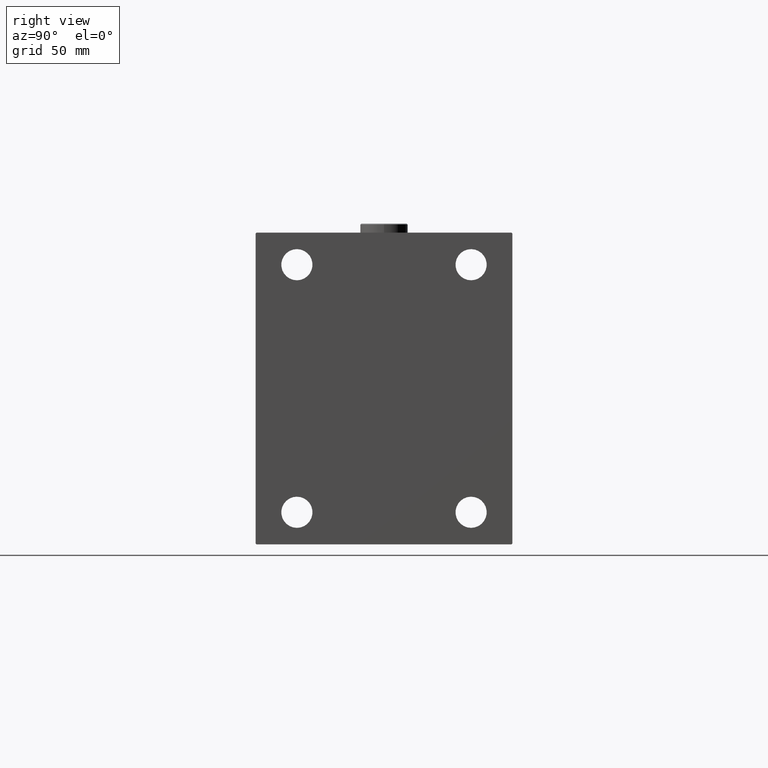
[diagram: clean part render]
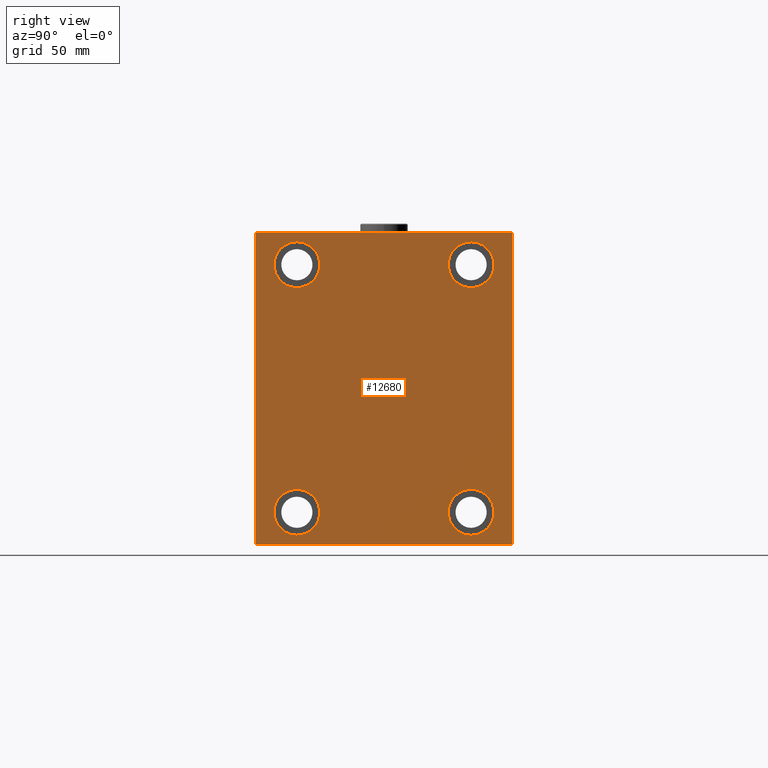
[diagram: same view with one face highlighted and labeled with its STEP entity id]
A machine part, right view. The second image highlights one B-rep face of the part: STEP entity #12680.
In plain terms, the highlighted planar face has unit normal (1, 0, 0).
Its self-contained STEP definition (entity closure, byte-faithful):
#618 = AXIS2_PLACEMENT_3D ( 'NONE', #37288, #1112, #26800 ) ;
#1112 = DIRECTION ( 'NONE',  ( -1.000000000000000000, -0.000000000000000000, -0.000000000000000000 ) ) ;
#1418 = VERTEX_POINT ( 'NONE', #10218 ) ;
#1517 = CIRCLE ( 'NONE', #19773, 12.49999999999999645 ) ;
#1647 = VERTEX_POINT ( 'NONE', #26127 ) ;
#2260 = VERTEX_POINT ( 'NONE', #35796 ) ;
#2362 = VECTOR ( 'NONE', #34978, 1000.000000000000114 ) ;
#2453 = AXIS2_PLACEMENT_3D ( 'NONE', #5840, #6082, #11093 ) ;
#2657 = DIRECTION ( 'NONE',  ( 0.000000000000000000, 0.000000000000000000, 1.000000000000000000 ) ) ;
#2693 = DIRECTION ( 'NONE',  ( -1.000000000000000000, -0.000000000000000000, -0.000000000000000000 ) ) ;
#2986 = FACE_BOUND ( 'NONE', #15420, .T. ) ;
#4187 = CARTESIAN_POINT ( 'NONE',  ( 255.0000000000000000, -47.49999999999999289, -80.00000000000000000 ) ) ;
#4335 = ORIENTED_EDGE ( 'NONE', *, *, #30972, .T. ) ;
#4725 = CARTESIAN_POINT ( 'NONE',  ( 255.0000000000000000, -47.49999999999997868, 80.00000000000001421 ) ) ;
#5840 = CARTESIAN_POINT ( 'NONE',  ( 255.0000000000000000, 0.000000000000000000, 0.000000000000000000 ) ) ;
#6082 = DIRECTION ( 'NONE',  ( 1.000000000000000000, 0.000000000000000000, 0.000000000000000000 ) ) ;
#6228 = DIRECTION ( 'NONE',  ( -1.000000000000000000, -0.000000000000000000, -0.000000000000000000 ) ) ;
#6283 = DIRECTION ( 'NONE',  ( -1.000000000000000000, -0.000000000000000000, -0.000000000000000000 ) ) ;
#6741 = LINE ( 'NONE', #41991, #41815 ) ;
#6797 = PLANE ( 'NONE',  #2453 ) ;
#6981 = DIRECTION ( 'NONE',  ( 0.000000000000000000, 0.000000000000000000, 1.000000000000000000 ) ) ;
#7210 = EDGE_CURVE ( 'NONE', #14552, #9081, #6741, .T. ) ;
#7704 = VERTEX_POINT ( 'NONE', #4725 ) ;
#7886 = CARTESIAN_POINT ( 'NONE',  ( 255.0000000000000000, -69.99999999999998579, 84.50000000000001421 ) ) ;
#8088 = ORIENTED_EDGE ( 'NONE', *, *, #10878, .T. ) ;
#9006 = VECTOR ( 'NONE', #35194, 1000.000000000000000 ) ;
#9081 = VERTEX_POINT ( 'NONE', #12990 ) ;
#9335 = EDGE_CURVE ( 'NONE', #36769, #34950, #21360, .T. ) ;
#9505 = DIRECTION ( 'NONE',  ( 0.000000000000000000, 0.000000000000000000, 1.000000000000000000 ) ) ;
#9636 = LINE ( 'NONE', #34148, #27259 ) ;
#9908 = ORIENTED_EDGE ( 'NONE', *, *, #42926, .T. ) ;
#10218 = CARTESIAN_POINT ( 'NONE',  ( 255.0000000000000000, 69.50000000000012790, -85.00000000000001421 ) ) ;
#10384 = FACE_BOUND ( 'NONE', #40654, .T. ) ;
#10640 = CARTESIAN_POINT ( 'NONE',  ( 255.0000000000000000, 47.50000000000000711, 80.00000000000001421 ) ) ;
#10778 = CARTESIAN_POINT ( 'NONE',  ( 255.0000000000000000, -47.49999999999997868, 67.50000000000000000 ) ) ;
#10878 = EDGE_CURVE ( 'NONE', #36033, #19587, #17590, .T. ) ;
#11093 = DIRECTION ( 'NONE',  ( 0.000000000000000000, 0.000000000000000000, -1.000000000000000000 ) ) ;
#11285 = DIRECTION ( 'NONE',  ( 0.000000000000000000, 0.000000000000000000, 1.000000000000000000 ) ) ;
#11309 = CARTESIAN_POINT ( 'NONE',  ( 255.0000000000000000, -47.49999999999999289, -67.50000000000000000 ) ) ;
#12131 = VERTEX_POINT ( 'NONE', #43574 ) ;
#12680 = ADVANCED_FACE ( 'NONE', ( #2986, #13233, #10384, #25120, #27731 ), #6797, .T. ) ;
#12767 = CIRCLE ( 'NONE', #618, 12.49999999999999645 ) ;
#12923 = VERTEX_POINT ( 'NONE', #23404 ) ;
#12990 = CARTESIAN_POINT ( 'NONE',  ( 255.0000000000000000, -69.99999999999998579, -84.50000000000004263 ) ) ;
#13233 = FACE_BOUND ( 'NONE', #42282, .T. ) ;
#13498 = EDGE_LOOP ( 'NONE', ( #17461, #27198, #15931, #9908, #16955, #15746, #44882, #44857 ) ) ;
#14147 = CARTESIAN_POINT ( 'NONE',  ( 255.0000000000000000, 47.50000000000000711, -55.00000000000000711 ) ) ;
#14552 = VERTEX_POINT ( 'NONE', #7886 ) ;
#15420 = EDGE_LOOP ( 'NONE', ( #27151, #17992 ) ) ;
#15746 = ORIENTED_EDGE ( 'NONE', *, *, #23367, .T. ) ;
#15931 = ORIENTED_EDGE ( 'NONE', *, *, #7210, .T. ) ;
#16512 = ORIENTED_EDGE ( 'NONE', *, *, #36558, .T. ) ;
#16707 = ORIENTED_EDGE ( 'NONE', *, *, #43582, .T. ) ;
#16869 = DIRECTION ( 'NONE',  ( -1.000000000000000000, -0.000000000000000000, -0.000000000000000000 ) ) ;
#16950 = ORIENTED_EDGE ( 'NONE', *, *, #9335, .T. ) ;
#16955 = ORIENTED_EDGE ( 'NONE', *, *, #37900, .T. ) ;
#17117 = CARTESIAN_POINT ( 'NONE',  ( 255.0000000000000000, 47.50000000000000711, -80.00000000000000000 ) ) ;
#17259 = CIRCLE ( 'NONE', #23329, 12.50000000000001066 ) ;
#17461 = ORIENTED_EDGE ( 'NONE', *, *, #21782, .T. ) ;
#17590 = CIRCLE ( 'NONE', #35838, 12.49999999999999645 ) ;
#17602 = CARTESIAN_POINT ( 'NONE',  ( 255.0000000000000000, -77.25000000000099476, -77.24999999999884892 ) ) ;
#17846 = DIRECTION ( 'NONE',  ( -0.000000000000000000, 0.7071067811865376918, 0.7071067811865574537 ) ) ;
#17944 = DIRECTION ( 'NONE',  ( 0.000000000000000000, 0.000000000000000000, 1.000000000000000000 ) ) ;
#17992 = ORIENTED_EDGE ( 'NONE', *, *, #36223, .T. ) ;
#18470 = CARTESIAN_POINT ( 'NONE',  ( 255.0000000000000000, 47.50000000000000711, 55.00000000000000000 ) ) ;
#19587 = VERTEX_POINT ( 'NONE', #4187 ) ;
#19636 = CARTESIAN_POINT ( 'NONE',  ( 255.0000000000000000, 77.25000000000099476, 77.24999999999884892 ) ) ;
#19773 = AXIS2_PLACEMENT_3D ( 'NONE', #25553, #40076, #11285 ) ;
#19808 = VECTOR ( 'NONE', #34911, 1000.000000000000000 ) ;
#20389 = LINE ( 'NONE', #38245, #19808 ) ;
#20456 = LINE ( 'NONE', #17602, #2362 ) ;
#20907 = LINE ( 'NONE', #42573, #9006 ) ;
#21360 = CIRCLE ( 'NONE', #33526, 12.50000000000001066 ) ;
#21782 = EDGE_CURVE ( 'NONE', #39596, #44276, #41598, .T. ) ;
#21941 = DIRECTION ( 'NONE',  ( -1.000000000000000000, -0.000000000000000000, -0.000000000000000000 ) ) ;
#22530 = VECTOR ( 'NONE', #34437, 1000.000000000000000 ) ;
#22659 = ORIENTED_EDGE ( 'NONE', *, *, #28827, .T. ) ;
#22735 = LINE ( 'NONE', #19636, #32760 ) ;
#23329 = AXIS2_PLACEMENT_3D ( 'NONE', #39602, #6283, #17944 ) ;
#23367 = EDGE_CURVE ( 'NONE', #1418, #12131, #35938, .T. ) ;
#23404 = CARTESIAN_POINT ( 'NONE',  ( 255.0000000000000000, 70.00000000000001421, 84.50000000000001421 ) ) ;
#23538 = CARTESIAN_POINT ( 'NONE',  ( 255.0000000000000000, 47.50000000000000711, -67.50000000000000000 ) ) ;
#24128 = CARTESIAN_POINT ( 'NONE',  ( 255.0000000000000000, -47.49999999999999289, -55.00000000000000711 ) ) ;
#25120 = FACE_BOUND ( 'NONE', #39612, .T. ) ;
#25455 = CARTESIAN_POINT ( 'NONE',  ( 255.0000000000000000, 77.25000000000103739, -77.24999999999890576 ) ) ;
#25500 = EDGE_CURVE ( 'NONE', #26393, #45816, #27062, .T. ) ;
#25553 = CARTESIAN_POINT ( 'NONE',  ( 255.0000000000000000, 47.50000000000000711, -67.50000000000000000 ) ) ;
#25807 = DIRECTION ( 'NONE',  ( -1.000000000000000000, -0.000000000000000000, -0.000000000000000000 ) ) ;
#26127 = CARTESIAN_POINT ( 'NONE',  ( 255.0000000000000000, -69.50000000000001421, -85.00000000000002842 ) ) ;
#26212 = DIRECTION ( 'NONE',  ( 0.000000000000000000, 0.000000000000000000, 1.000000000000000000 ) ) ;
#26393 = VERTEX_POINT ( 'NONE', #17117 ) ;
#26800 = DIRECTION ( 'NONE',  ( 0.000000000000000000, 0.000000000000000000, 1.000000000000000000 ) ) ;
#27062 = CIRCLE ( 'NONE', #43923, 12.49999999999999645 ) ;
#27151 = ORIENTED_EDGE ( 'NONE', *, *, #25500, .T. ) ;
#27198 = ORIENTED_EDGE ( 'NONE', *, *, #32474, .T. ) ;
#27259 = VECTOR ( 'NONE', #31041, 1000.000000000000114 ) ;
#27731 = FACE_OUTER_BOUND ( 'NONE', #13498, .T. ) ;
#28123 = AXIS2_PLACEMENT_3D ( 'NONE', #38837, #6228, #2657 ) ;
#28827 = EDGE_CURVE ( 'NONE', #34950, #36769, #17259, .T. ) ;
#28908 = CIRCLE ( 'NONE', #28123, 12.50000000000001066 ) ;
#30972 = EDGE_CURVE ( 'NONE', #19587, #36033, #12767, .T. ) ;
#31041 = DIRECTION ( 'NONE',  ( 0.000000000000000000, -0.7071067811865474617, -0.7071067811865474617 ) ) ;
#31369 = EDGE_CURVE ( 'NONE', #12131, #12923, #20907, .T. ) ;
#31739 = DIRECTION ( 'NONE',  ( 0.000000000000000000, 0.000000000000000000, -1.000000000000000000 ) ) ;
#32474 = EDGE_CURVE ( 'NONE', #44276, #14552, #9636, .T. ) ;
#32760 = VECTOR ( 'NONE', #36798, 1000.000000000000114 ) ;
#33526 = AXIS2_PLACEMENT_3D ( 'NONE', #35307, #2693, #6981 ) ;
#34148 = CARTESIAN_POINT ( 'NONE',  ( 255.0000000000000000, -77.25000000000001421, 77.25000000000001421 ) ) ;
#34437 = DIRECTION ( 'NONE',  ( 0.000000000000000000, -1.000000000000000000, -9.912705577010325549E-17 ) ) ;
#34911 = DIRECTION ( 'NONE',  ( 0.000000000000000000, 1.000000000000000000, 9.912705577010325549E-17 ) ) ;
#34950 = VERTEX_POINT ( 'NONE', #18470 ) ;
#34978 = DIRECTION ( 'NONE',  ( -0.000000000000000000, 0.7071067811865376918, -0.7071067811865573427 ) ) ;
#35194 = DIRECTION ( 'NONE',  ( 0.000000000000000000, -8.163404592832031500E-17, 1.000000000000000000 ) ) ;
#35307 = CARTESIAN_POINT ( 'NONE',  ( 255.0000000000000000, 47.50000000000000711, 67.50000000000000000 ) ) ;
#35796 = CARTESIAN_POINT ( 'NONE',  ( 255.0000000000000000, -47.49999999999997868, 55.00000000000000000 ) ) ;
#35838 = AXIS2_PLACEMENT_3D ( 'NONE', #11309, #25807, #40337 ) ;
#35938 = LINE ( 'NONE', #25455, #41561 ) ;
#36033 = VERTEX_POINT ( 'NONE', #24128 ) ;
#36223 = EDGE_CURVE ( 'NONE', #45816, #26393, #1517, .T. ) ;
#36558 = EDGE_CURVE ( 'NONE', #2260, #7704, #28908, .T. ) ;
#36769 = VERTEX_POINT ( 'NONE', #10640 ) ;
#36798 = DIRECTION ( 'NONE',  ( -0.000000000000000000, -0.7071067811865376918, 0.7071067811865573427 ) ) ;
#37288 = CARTESIAN_POINT ( 'NONE',  ( 255.0000000000000000, -47.49999999999999289, -67.50000000000000000 ) ) ;
#37900 = EDGE_CURVE ( 'NONE', #1647, #1418, #20389, .T. ) ;
#37991 = EDGE_CURVE ( 'NONE', #12923, #39596, #22735, .T. ) ;
#38245 = CARTESIAN_POINT ( 'NONE',  ( 255.0000000000000000, -69.99999999999998579, -85.00000000000002842 ) ) ;
#38837 = CARTESIAN_POINT ( 'NONE',  ( 255.0000000000000000, -47.49999999999997868, 67.50000000000000000 ) ) ;
#38864 = CIRCLE ( 'NONE', #42679, 12.50000000000001066 ) ;
#39596 = VERTEX_POINT ( 'NONE', #43144 ) ;
#39602 = CARTESIAN_POINT ( 'NONE',  ( 255.0000000000000000, 47.50000000000000711, 67.50000000000000000 ) ) ;
#39612 = EDGE_LOOP ( 'NONE', ( #4335, #8088 ) ) ;
#40076 = DIRECTION ( 'NONE',  ( -1.000000000000000000, -0.000000000000000000, -0.000000000000000000 ) ) ;
#40337 = DIRECTION ( 'NONE',  ( 0.000000000000000000, 0.000000000000000000, 1.000000000000000000 ) ) ;
#40654 = EDGE_LOOP ( 'NONE', ( #22659, #16950 ) ) ;
#41561 = VECTOR ( 'NONE', #17846, 999.9999999999998863 ) ;
#41598 = LINE ( 'NONE', #41834, #22530 ) ;
#41815 = VECTOR ( 'NONE', #31739, 1000.000000000000000 ) ;
#41834 = CARTESIAN_POINT ( 'NONE',  ( 255.0000000000000000, 70.00000000000001421, 85.00000000000000000 ) ) ;
#41991 = CARTESIAN_POINT ( 'NONE',  ( 255.0000000000000000, -69.99999999999998579, 84.99999999999998579 ) ) ;
#42282 = EDGE_LOOP ( 'NONE', ( #16512, #16707 ) ) ;
#42573 = CARTESIAN_POINT ( 'NONE',  ( 255.0000000000000000, 70.00000000000002842, -85.00000000000001421 ) ) ;
#42679 = AXIS2_PLACEMENT_3D ( 'NONE', #10778, #21941, #26212 ) ;
#42926 = EDGE_CURVE ( 'NONE', #9081, #1647, #20456, .T. ) ;
#43144 = CARTESIAN_POINT ( 'NONE',  ( 255.0000000000000000, 69.50000000000004263, 85.00000000000000000 ) ) ;
#43574 = CARTESIAN_POINT ( 'NONE',  ( 255.0000000000000000, 70.00000000000002842, -84.50000000000009948 ) ) ;
#43582 = EDGE_CURVE ( 'NONE', #7704, #2260, #38864, .T. ) ;
#43923 = AXIS2_PLACEMENT_3D ( 'NONE', #23538, #16869, #9505 ) ;
#44276 = VERTEX_POINT ( 'NONE', #44655 ) ;
#44655 = CARTESIAN_POINT ( 'NONE',  ( 255.0000000000000000, -69.50000000000001421, 84.99999999999998579 ) ) ;
#44857 = ORIENTED_EDGE ( 'NONE', *, *, #37991, .T. ) ;
#44882 = ORIENTED_EDGE ( 'NONE', *, *, #31369, .T. ) ;
#45816 = VERTEX_POINT ( 'NONE', #14147 ) ;